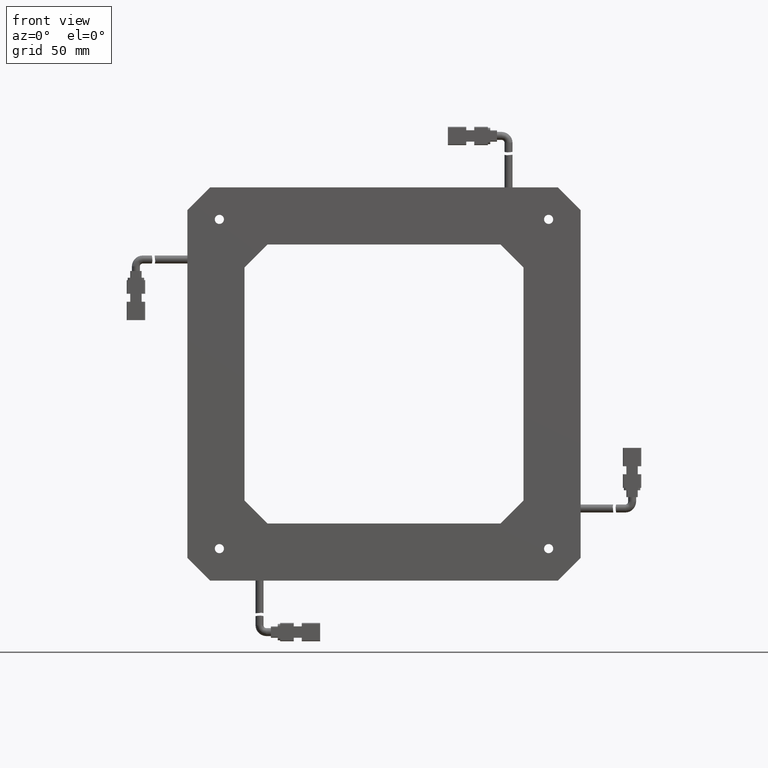
[diagram: clean part render]
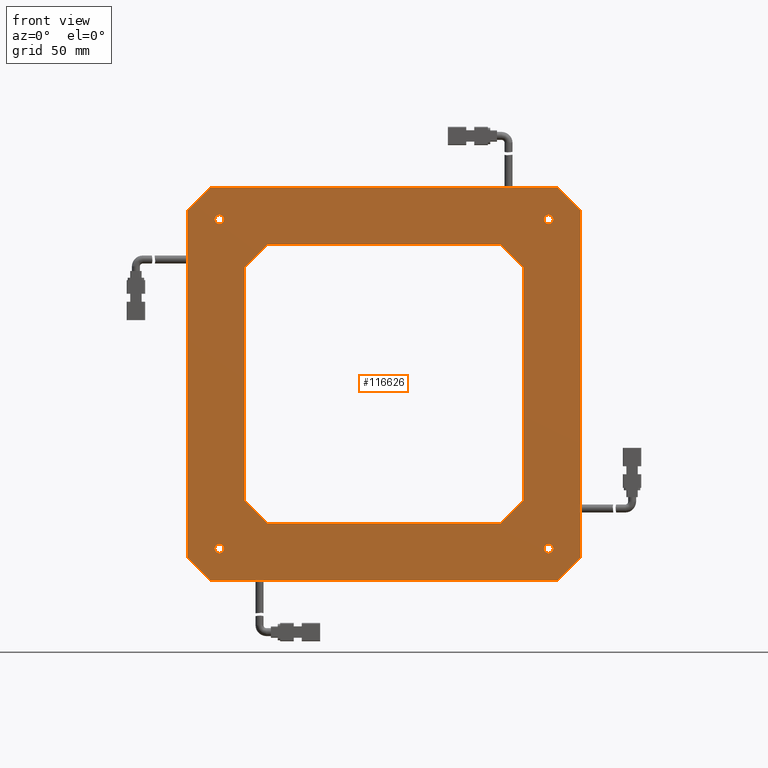
[diagram: same view with one face highlighted and labeled with its STEP entity id]
A machine part, front view. The second image highlights one B-rep face of the part: STEP entity #116626.
In plain terms, the highlighted planar face has unit normal (-0, -1, 0).
Its self-contained STEP definition (entity closure, byte-faithful):
#353 = LINE ( 'NONE', #99177, #24971 ) ;
#489 = EDGE_CURVE ( 'NONE', #92058, #90752, #73007, .T. ) ;
#1082 = LINE ( 'NONE', #80124, #66672 ) ;
#1725 = VERTEX_POINT ( 'NONE', #43940 ) ;
#2069 = CARTESIAN_POINT ( 'NONE',  ( 86.00000000000000000, -3.000000000000004900, 60.99999999999998600 ) ) ;
#2587 = CARTESIAN_POINT ( 'NONE',  ( -61.00000000000000700, -2.999999999999996400, -50.99999999999990100 ) ) ;
#3328 = ORIENTED_EDGE ( 'NONE', *, *, #49551, .T. ) ;
#4138 = EDGE_CURVE ( 'NONE', #54915, #36711, #51238, .T. ) ;
#4194 = VERTEX_POINT ( 'NONE', #106639 ) ;
#5799 = DIRECTION ( 'NONE',  ( -1.000000000000000000, 5.551115123125760500E-017, -7.885175750095784300E-018 ) ) ;
#8082 = ORIENTED_EDGE ( 'NONE', *, *, #105687, .T. ) ;
#8896 = DIRECTION ( 'NONE',  ( 0.7071067811865445800, -3.925231146709405900E-017, -0.7071067811865504600 ) ) ;
#9552 = LINE ( 'NONE', #68569, #34080 ) ;
#10014 = EDGE_CURVE ( 'NONE', #134882, #35866, #67862, .T. ) ;
#10743 = EDGE_CURVE ( 'NONE', #4194, #11937, #106890, .T. ) ;
#11134 = CIRCLE ( 'NONE', #130300, 2.000000000000001800 ) ;
#11937 = VERTEX_POINT ( 'NONE', #36975 ) ;
#12092 = LINE ( 'NONE', #112169, #116816 ) ;
#12118 = VERTEX_POINT ( 'NONE', #93304 ) ;
#12740 = ORIENTED_EDGE ( 'NONE', *, *, #100812, .T. ) ;
#12986 = LINE ( 'NONE', #104684, #121063 ) ;
#13870 = DIRECTION ( 'NONE',  ( 7.885175750095784300E-018, -4.377151835486122500E-034, -1.000000000000000000 ) ) ;
#14246 = CARTESIAN_POINT ( 'NONE',  ( 69.99999999999998600, -3.000000000000004000, -72.00000000000001400 ) ) ;
#16941 = CIRCLE ( 'NONE', #98904, 1.999999999999988000 ) ;
#17623 = AXIS2_PLACEMENT_3D ( 'NONE', #53150, #126329, #63667 ) ;
#17761 = CARTESIAN_POINT ( 'NONE',  ( 73.99999999999997200, -3.000000000000004000, -72.00000000000001400 ) ) ;
#18473 = EDGE_LOOP ( 'NONE', ( #120994, #104267 ) ) ;
#19502 = CARTESIAN_POINT ( 'NONE',  ( -72.00000000000002800, -2.999999999999996000, 72.00000000000001400 ) ) ;
#20068 = DIRECTION ( 'NONE',  ( 1.000000000000000000, -5.551115123125760500E-017, 7.885175750095784300E-018 ) ) ;
#22137 = FACE_BOUND ( 'NONE', #118400, .T. ) ;
#22295 = AXIS2_PLACEMENT_3D ( 'NONE', #116206, #53550, #126722 ) ;
#22750 = LINE ( 'NONE', #135658, #130853 ) ;
#23213 = ORIENTED_EDGE ( 'NONE', *, *, #26755, .T. ) ;
#23884 = VERTEX_POINT ( 'NONE', #56601 ) ;
#24371 = AXIS2_PLACEMENT_3D ( 'NONE', #97455, #34640, #107974 ) ;
#24915 = LINE ( 'NONE', #29570, #133018 ) ;
#24971 = VECTOR ( 'NONE', #25928, 1000.000000000000000 ) ;
#25449 = FACE_BOUND ( 'NONE', #82469, .T. ) ;
#25928 = DIRECTION ( 'NONE',  ( -0.7071067811865485700, 3.925231146709428100E-017, -0.7071067811865465700 ) ) ;
#26278 = EDGE_CURVE ( 'NONE', #131439, #36726, #35521, .T. ) ;
#26755 = EDGE_CURVE ( 'NONE', #29450, #12118, #125370, .T. ) ;
#27900 = CARTESIAN_POINT ( 'NONE',  ( 50.99999999999997900, -3.000000000000003100, 61.00000000000000000 ) ) ;
#28227 = ORIENTED_EDGE ( 'NONE', *, *, #78032, .T. ) ;
#28546 = CIRCLE ( 'NONE', #17623, 1.999999999999988000 ) ;
#29450 = VERTEX_POINT ( 'NONE', #118580 ) ;
#29570 = CARTESIAN_POINT ( 'NONE',  ( -61.00000000000000000, -2.999999999999996400, 51.00000000000002800 ) ) ;
#29620 = ORIENTED_EDGE ( 'NONE', *, *, #116183, .T. ) ;
#30024 = DIRECTION ( 'NONE',  ( -1.000000000000000000, 0.0000000000000000000, 0.0000000000000000000 ) ) ;
#30491 = EDGE_LOOP ( 'NONE', ( #12740, #29620, #81619, #53581, #57696, #110110, #80889, #110401 ) ) ;
#34080 = VECTOR ( 'NONE', #5799, 1000.000000000000000 ) ;
#34315 = ORIENTED_EDGE ( 'NONE', *, *, #128210, .T. ) ;
#34640 = DIRECTION ( 'NONE',  ( 5.551115123125761100E-017, 1.000000000000000000, -0.0000000000000000000 ) ) ;
#35464 = DIRECTION ( 'NONE',  ( -7.885175750095784300E-018, 4.377151835486122500E-034, 1.000000000000000000 ) ) ;
#35521 = CIRCLE ( 'NONE', #60119, 2.000000000000001800 ) ;
#35529 = VECTOR ( 'NONE', #35464, 1000.000000000000000 ) ;
#35866 = VERTEX_POINT ( 'NONE', #121808 ) ;
#35937 = CARTESIAN_POINT ( 'NONE',  ( 61.00000000000000000, -3.000000000000003600, 50.99999999999987900 ) ) ;
#36711 = VERTEX_POINT ( 'NONE', #14246 ) ;
#36726 = VERTEX_POINT ( 'NONE', #67310 ) ;
#36975 = CARTESIAN_POINT ( 'NONE',  ( 70.00000000000002800, -3.000000000000004000, 72.00000000000001400 ) ) ;
#39103 = EDGE_CURVE ( 'NONE', #35866, #92058, #24915, .T. ) ;
#39685 = DIRECTION ( 'NONE',  ( 5.551115123125761100E-017, 1.000000000000000000, -0.0000000000000000000 ) ) ;
#40009 = DIRECTION ( 'NONE',  ( -0.7071067811865504600, 3.925231146709438500E-017, -0.7071067811865445800 ) ) ;
#42476 = CARTESIAN_POINT ( 'NONE',  ( -86.00000000000000000, -2.999999999999995100, -75.99999999999994300 ) ) ;
#43128 = ORIENTED_EDGE ( 'NONE', *, *, #39103, .T. ) ;
#43592 = CARTESIAN_POINT ( 'NONE',  ( 86.00000000000000000, -3.000000000000004900, 86.00000000000000000 ) ) ;
#43940 = CARTESIAN_POINT ( 'NONE',  ( -75.99999999999998600, -2.999999999999995600, -86.00000000000000000 ) ) ;
#43946 = CARTESIAN_POINT ( 'NONE',  ( 75.99999999999997200, -3.000000000000004400, -85.99999999999998600 ) ) ;
#46030 = VERTEX_POINT ( 'NONE', #125625 ) ;
#48032 = CARTESIAN_POINT ( 'NONE',  ( -72.00000000000002800, -2.999999999999996000, 72.00000000000001400 ) ) ;
#48924 = EDGE_CURVE ( 'NONE', #50940, #96467, #22750, .T. ) ;
#49535 = DIRECTION ( 'NONE',  ( -7.885175750095784300E-018, 4.377151835486122500E-034, 1.000000000000000000 ) ) ;
#49551 = EDGE_CURVE ( 'NONE', #36726, #131439, #74768, .T. ) ;
#49970 = FACE_BOUND ( 'NONE', #18473, .T. ) ;
#49999 = ORIENTED_EDGE ( 'NONE', *, *, #26278, .T. ) ;
#50940 = VERTEX_POINT ( 'NONE', #43946 ) ;
#51238 = CIRCLE ( 'NONE', #22295, 1.999999999999988000 ) ;
#53150 = CARTESIAN_POINT ( 'NONE',  ( 71.99999999999998600, -3.000000000000004000, -72.00000000000001400 ) ) ;
#53254 = FACE_BOUND ( 'NONE', #85802, .T. ) ;
#53550 = DIRECTION ( 'NONE',  ( 5.551115123125761100E-017, 1.000000000000000000, -0.0000000000000000000 ) ) ;
#53581 = ORIENTED_EDGE ( 'NONE', *, *, #122499, .T. ) ;
#54118 = DIRECTION ( 'NONE',  ( -1.000000000000000000, 5.551115123125760500E-017, -7.885175750095784300E-018 ) ) ;
#54157 = DIRECTION ( 'NONE',  ( 5.551115123125761100E-017, 1.000000000000000000, -0.0000000000000000000 ) ) ;
#54915 = VERTEX_POINT ( 'NONE', #17761 ) ;
#55724 = VERTEX_POINT ( 'NONE', #84843 ) ;
#56135 = CARTESIAN_POINT ( 'NONE',  ( 86.00000000000000000, -3.000000000000004900, 86.00000000000000000 ) ) ;
#56601 = CARTESIAN_POINT ( 'NONE',  ( -74.00000000000002800, -2.999999999999996000, -72.00000000000001400 ) ) ;
#57696 = ORIENTED_EDGE ( 'NONE', *, *, #66030, .T. ) ;
#58414 = LINE ( 'NONE', #88330, #83011 ) ;
#58540 = DIRECTION ( 'NONE',  ( -1.000000000000000000, 0.0000000000000000000, 0.0000000000000000000 ) ) ;
#59186 = CARTESIAN_POINT ( 'NONE',  ( 72.00000000000002800, -3.000000000000004000, 72.00000000000001400 ) ) ;
#59532 = ORIENTED_EDGE ( 'NONE', *, *, #130513, .T. ) ;
#60119 = AXIS2_PLACEMENT_3D ( 'NONE', #19502, #92806, #30024 ) ;
#60886 = CARTESIAN_POINT ( 'NONE',  ( -51.00000000000003600, -2.999999999999996900, -61.00000000000000000 ) ) ;
#62981 = DIRECTION ( 'NONE',  ( -1.000000000000000000, 5.551115123125760500E-017, -7.885175750095784300E-018 ) ) ;
#63667 = DIRECTION ( 'NONE',  ( -1.000000000000000000, 0.0000000000000000000, 0.0000000000000000000 ) ) ;
#64045 = ORIENTED_EDGE ( 'NONE', *, *, #104312, .T. ) ;
#66030 = EDGE_CURVE ( 'NONE', #115490, #85719, #80184, .T. ) ;
#66672 = VECTOR ( 'NONE', #69554, 1000.000000000000100 ) ;
#67310 = CARTESIAN_POINT ( 'NONE',  ( -74.00000000000002800, -2.999999999999996000, 72.00000000000001400 ) ) ;
#67862 = LINE ( 'NONE', #112237, #92460 ) ;
#68187 = VERTEX_POINT ( 'NONE', #125099 ) ;
#68445 = DIRECTION ( 'NONE',  ( 7.885175750095784300E-018, -4.377151835486122500E-034, -1.000000000000000000 ) ) ;
#68569 = CARTESIAN_POINT ( 'NONE',  ( 86.00000000000000000, -3.000000000000004900, 86.00000000000000000 ) ) ;
#68878 = CARTESIAN_POINT ( 'NONE',  ( 61.00000000000000000, -3.000000000000003600, 86.00000000000000000 ) ) ;
#69554 = DIRECTION ( 'NONE',  ( -0.7071067811865461300, 3.925231146709413900E-017, 0.7071067811865489100 ) ) ;
#69763 = DIRECTION ( 'NONE',  ( -1.000000000000000000, 0.0000000000000000000, 0.0000000000000000000 ) ) ;
#71954 = EDGE_CURVE ( 'NONE', #85719, #1725, #98491, .T. ) ;
#73007 = LINE ( 'NONE', #2069, #125352 ) ;
#73967 = EDGE_LOOP ( 'NONE', ( #3328, #49999 ) ) ;
#74768 = CIRCLE ( 'NONE', #94683, 2.000000000000001800 ) ;
#75394 = DIRECTION ( 'NONE',  ( 1.000000000000000000, -5.551115123125760500E-017, 7.885175750095784300E-018 ) ) ;
#77080 = CARTESIAN_POINT ( 'NONE',  ( -86.00000000000001400, -2.999999999999995100, 75.99999999999998600 ) ) ;
#77742 = VERTEX_POINT ( 'NONE', #95098 ) ;
#77859 = FACE_BOUND ( 'NONE', #73967, .T. ) ;
#77887 = ORIENTED_EDGE ( 'NONE', *, *, #489, .T. ) ;
#78032 = EDGE_CURVE ( 'NONE', #94586, #29450, #88290, .T. ) ;
#80124 = CARTESIAN_POINT ( 'NONE',  ( 86.00000000000000000, -3.000000000000004900, 75.99999999999991500 ) ) ;
#80184 = LINE ( 'NONE', #87082, #108006 ) ;
#80660 = DIRECTION ( 'NONE',  ( 0.7071067811865442400, -3.925231146709404000E-017, -0.7071067811865507900 ) ) ;
#80889 = ORIENTED_EDGE ( 'NONE', *, *, #134744, .T. ) ;
#81143 = FACE_OUTER_BOUND ( 'NONE', #30491, .T. ) ;
#81619 = ORIENTED_EDGE ( 'NONE', *, *, #117426, .T. ) ;
#82260 = AXIS2_PLACEMENT_3D ( 'NONE', #102416, #39685, #112896 ) ;
#82469 = EDGE_LOOP ( 'NONE', ( #59532, #64045 ) ) ;
#83011 = VECTOR ( 'NONE', #98881, 999.9999999999998900 ) ;
#84843 = CARTESIAN_POINT ( 'NONE',  ( 75.99999999999994300, -3.000000000000004400, 86.00000000000001400 ) ) ;
#84985 = VECTOR ( 'NONE', #68445, 1000.000000000000000 ) ;
#85719 = VERTEX_POINT ( 'NONE', #42476 ) ;
#85802 = EDGE_LOOP ( 'NONE', ( #126602, #43128, #77887, #110496, #28227, #23213, #118939, #8082 ) ) ;
#87082 = CARTESIAN_POINT ( 'NONE',  ( -86.00000000000001400, -2.999999999999995100, 86.00000000000000000 ) ) ;
#88290 = LINE ( 'NONE', #68878, #84985 ) ;
#88330 = CARTESIAN_POINT ( 'NONE',  ( -51.00000000000001400, -2.999999999999996900, -61.00000000000001400 ) ) ;
#88630 = CIRCLE ( 'NONE', #82260, 2.000000000000001800 ) ;
#90752 = VERTEX_POINT ( 'NONE', #27900 ) ;
#92058 = VERTEX_POINT ( 'NONE', #128260 ) ;
#92460 = VECTOR ( 'NONE', #49535, 1000.000000000000000 ) ;
#92806 = DIRECTION ( 'NONE',  ( 5.551115123125761100E-017, 1.000000000000000000, -0.0000000000000000000 ) ) ;
#92899 = LINE ( 'NONE', #114305, #117360 ) ;
#93304 = CARTESIAN_POINT ( 'NONE',  ( 50.99999999999991500, -3.000000000000003100, -61.00000000000001400 ) ) ;
#94033 = DIRECTION ( 'NONE',  ( 0.7071067811865485700, -3.925231146709428100E-017, 0.7071067811865465700 ) ) ;
#94586 = VERTEX_POINT ( 'NONE', #35937 ) ;
#94610 = LINE ( 'NONE', #56135, #35529 ) ;
#94683 = AXIS2_PLACEMENT_3D ( 'NONE', #48032, #121285, #58540 ) ;
#95098 = CARTESIAN_POINT ( 'NONE',  ( -76.00000000000000000, -2.999999999999995600, 86.00000000000000000 ) ) ;
#95388 = PLANE ( 'NONE',  #105926 ) ;
#96467 = VERTEX_POINT ( 'NONE', #133090 ) ;
#97455 = CARTESIAN_POINT ( 'NONE',  ( 72.00000000000002800, -3.000000000000004000, 72.00000000000001400 ) ) ;
#98491 = LINE ( 'NONE', #134362, #122971 ) ;
#98881 = DIRECTION ( 'NONE',  ( -0.7071067811865425800, 3.925231146709395400E-017, 0.7071067811865525700 ) ) ;
#98904 = AXIS2_PLACEMENT_3D ( 'NONE', #59186, #132480, #69763 ) ;
#99177 = CARTESIAN_POINT ( 'NONE',  ( -76.00000000000001400, -2.999999999999995600, 85.99999999999998600 ) ) ;
#100812 = EDGE_CURVE ( 'NONE', #96467, #68187, #94610, .T. ) ;
#102297 = CARTESIAN_POINT ( 'NONE',  ( 61.00000000000000000, -3.000000000000003600, -51.00000000000000700 ) ) ;
#102416 = CARTESIAN_POINT ( 'NONE',  ( -72.00000000000002800, -2.999999999999996000, -72.00000000000001400 ) ) ;
#104267 = ORIENTED_EDGE ( 'NONE', *, *, #10743, .T. ) ;
#104312 = EDGE_CURVE ( 'NONE', #46030, #23884, #88630, .T. ) ;
#104684 = CARTESIAN_POINT ( 'NONE',  ( 86.00000000000000000, -3.000000000000004900, -61.00000000000001400 ) ) ;
#105687 = EDGE_CURVE ( 'NONE', #131474, #134882, #58414, .T. ) ;
#105926 = AXIS2_PLACEMENT_3D ( 'NONE', #43592, #116782, #54118 ) ;
#105970 = EDGE_CURVE ( 'NONE', #12118, #131474, #12986, .T. ) ;
#106639 = CARTESIAN_POINT ( 'NONE',  ( 74.00000000000001400, -3.000000000000004000, 72.00000000000001400 ) ) ;
#106890 = CIRCLE ( 'NONE', #24371, 1.999999999999988000 ) ;
#107680 = EDGE_CURVE ( 'NONE', #90752, #94586, #12092, .T. ) ;
#107974 = DIRECTION ( 'NONE',  ( -1.000000000000000000, 0.0000000000000000000, 0.0000000000000000000 ) ) ;
#108006 = VECTOR ( 'NONE', #13870, 1000.000000000000000 ) ;
#110110 = ORIENTED_EDGE ( 'NONE', *, *, #71954, .T. ) ;
#110401 = ORIENTED_EDGE ( 'NONE', *, *, #48924, .T. ) ;
#110496 = ORIENTED_EDGE ( 'NONE', *, *, #107680, .T. ) ;
#112169 = CARTESIAN_POINT ( 'NONE',  ( 50.99999999999997200, -3.000000000000003100, 61.00000000000000000 ) ) ;
#112237 = CARTESIAN_POINT ( 'NONE',  ( -61.00000000000000000, -2.999999999999996400, 86.00000000000000000 ) ) ;
#112896 = DIRECTION ( 'NONE',  ( -1.000000000000000000, 0.0000000000000000000, 0.0000000000000000000 ) ) ;
#112923 = CARTESIAN_POINT ( 'NONE',  ( -70.00000000000001400, -2.999999999999996000, 72.00000000000001400 ) ) ;
#114305 = CARTESIAN_POINT ( 'NONE',  ( 86.00000000000000000, -3.000000000000004900, -86.00000000000000000 ) ) ;
#115490 = VERTEX_POINT ( 'NONE', #77080 ) ;
#116183 = EDGE_CURVE ( 'NONE', #68187, #55724, #1082, .T. ) ;
#116206 = CARTESIAN_POINT ( 'NONE',  ( 71.99999999999998600, -3.000000000000004000, -72.00000000000001400 ) ) ;
#116626 = ADVANCED_FACE ( 'NONE', ( #53254, #81143, #25449, #77859, #49970, #22137 ), #95388, .T. ) ;
#116782 = DIRECTION ( 'NONE',  ( -5.551115123125760500E-017, -1.000000000000000000, 0.0000000000000000000 ) ) ;
#116816 = VECTOR ( 'NONE', #80660, 1000.000000000000100 ) ;
#116824 = CARTESIAN_POINT ( 'NONE',  ( -72.00000000000002800, -2.999999999999996000, -72.00000000000001400 ) ) ;
#117360 = VECTOR ( 'NONE', #20068, 1000.000000000000000 ) ;
#117426 = EDGE_CURVE ( 'NONE', #55724, #77742, #9552, .T. ) ;
#118400 = EDGE_LOOP ( 'NONE', ( #34315, #120729 ) ) ;
#118580 = CARTESIAN_POINT ( 'NONE',  ( 61.00000000000000000, -3.000000000000003600, -51.00000000000002800 ) ) ;
#118830 = VECTOR ( 'NONE', #40009, 1000.000000000000000 ) ;
#118939 = ORIENTED_EDGE ( 'NONE', *, *, #105970, .T. ) ;
#120729 = ORIENTED_EDGE ( 'NONE', *, *, #4138, .T. ) ;
#120994 = ORIENTED_EDGE ( 'NONE', *, *, #135570, .T. ) ;
#121063 = VECTOR ( 'NONE', #62981, 1000.000000000000000 ) ;
#121285 = DIRECTION ( 'NONE',  ( 5.551115123125761100E-017, 1.000000000000000000, -0.0000000000000000000 ) ) ;
#121808 = CARTESIAN_POINT ( 'NONE',  ( -61.00000000000000000, -2.999999999999996400, 51.00000000000002800 ) ) ;
#122499 = EDGE_CURVE ( 'NONE', #77742, #115490, #353, .T. ) ;
#122971 = VECTOR ( 'NONE', #8896, 1000.000000000000000 ) ;
#123784 = DIRECTION ( 'NONE',  ( 0.7071067811865513500, -3.925231146709443500E-017, 0.7071067811865435800 ) ) ;
#125099 = CARTESIAN_POINT ( 'NONE',  ( 86.00000000000000000, -3.000000000000004900, 75.99999999999990100 ) ) ;
#125352 = VECTOR ( 'NONE', #75394, 1000.000000000000000 ) ;
#125370 = LINE ( 'NONE', #102297, #118830 ) ;
#125625 = CARTESIAN_POINT ( 'NONE',  ( -70.00000000000001400, -2.999999999999996000, -72.00000000000001400 ) ) ;
#126329 = DIRECTION ( 'NONE',  ( 5.551115123125761100E-017, 1.000000000000000000, -0.0000000000000000000 ) ) ;
#126602 = ORIENTED_EDGE ( 'NONE', *, *, #10014, .T. ) ;
#126722 = DIRECTION ( 'NONE',  ( -1.000000000000000000, 0.0000000000000000000, 0.0000000000000000000 ) ) ;
#127336 = DIRECTION ( 'NONE',  ( -1.000000000000000000, 0.0000000000000000000, 0.0000000000000000000 ) ) ;
#128210 = EDGE_CURVE ( 'NONE', #36711, #54915, #28546, .T. ) ;
#128260 = CARTESIAN_POINT ( 'NONE',  ( -50.99999999999994300, -2.999999999999996900, 60.99999999999998600 ) ) ;
#130300 = AXIS2_PLACEMENT_3D ( 'NONE', #116824, #54157, #127336 ) ;
#130513 = EDGE_CURVE ( 'NONE', #23884, #46030, #11134, .T. ) ;
#130853 = VECTOR ( 'NONE', #94033, 1000.000000000000000 ) ;
#131439 = VERTEX_POINT ( 'NONE', #112923 ) ;
#131474 = VERTEX_POINT ( 'NONE', #60886 ) ;
#132480 = DIRECTION ( 'NONE',  ( 5.551115123125761100E-017, 1.000000000000000000, -0.0000000000000000000 ) ) ;
#133018 = VECTOR ( 'NONE', #123784, 1000.000000000000100 ) ;
#133090 = CARTESIAN_POINT ( 'NONE',  ( 86.00000000000000000, -3.000000000000004900, -75.99999999999997200 ) ) ;
#134362 = CARTESIAN_POINT ( 'NONE',  ( -86.00000000000000000, -2.999999999999995100, -75.99999999999991500 ) ) ;
#134744 = EDGE_CURVE ( 'NONE', #1725, #50940, #92899, .T. ) ;
#134882 = VERTEX_POINT ( 'NONE', #2587 ) ;
#135570 = EDGE_CURVE ( 'NONE', #11937, #4194, #16941, .T. ) ;
#135658 = CARTESIAN_POINT ( 'NONE',  ( 76.00000000000000000, -3.000000000000004400, -85.99999999999995700 ) ) ;